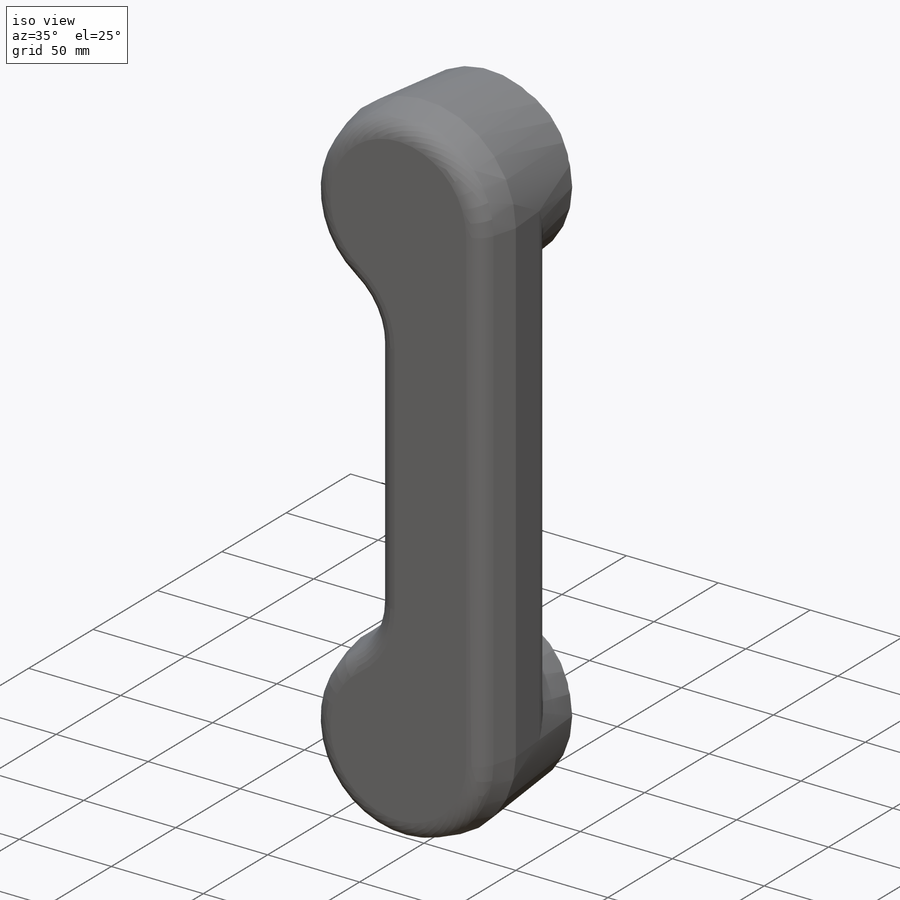
[diagram: iso view]
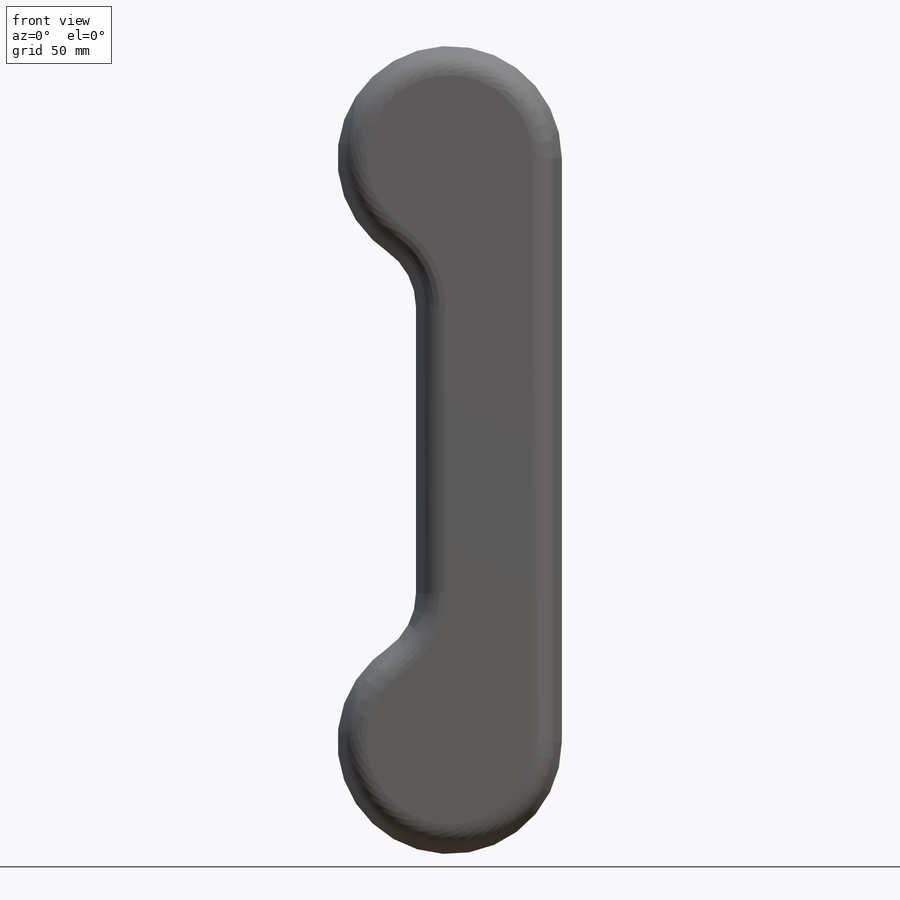
[diagram: front view]
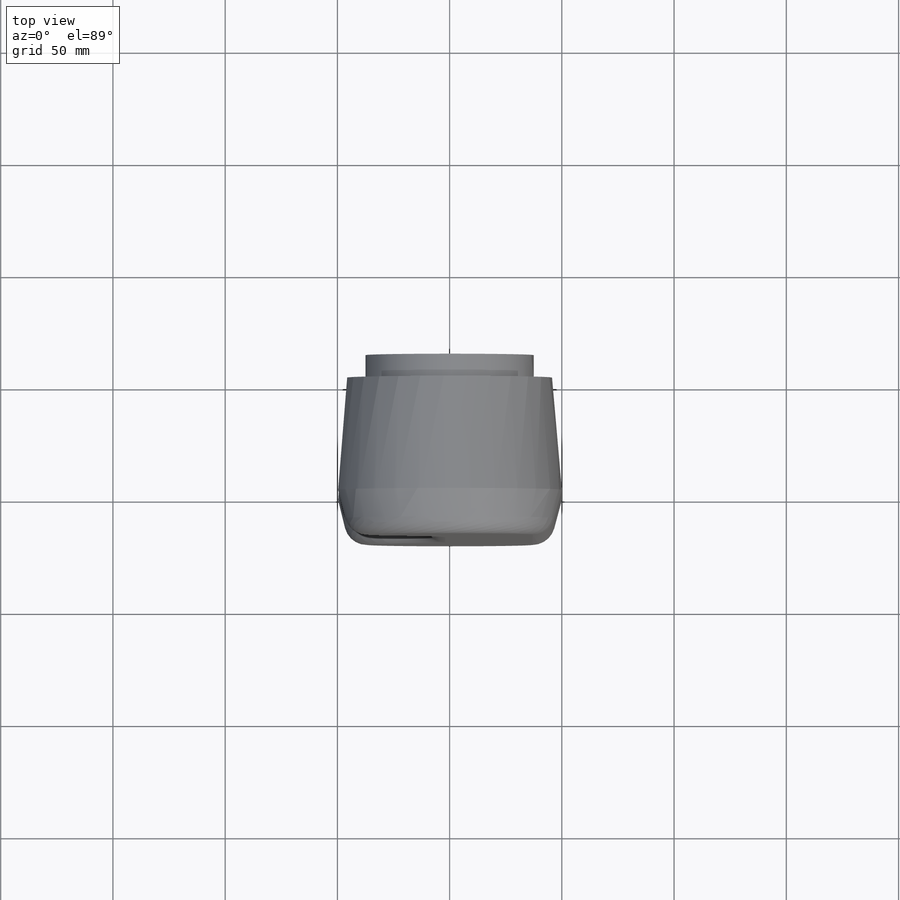
[diagram: top view]
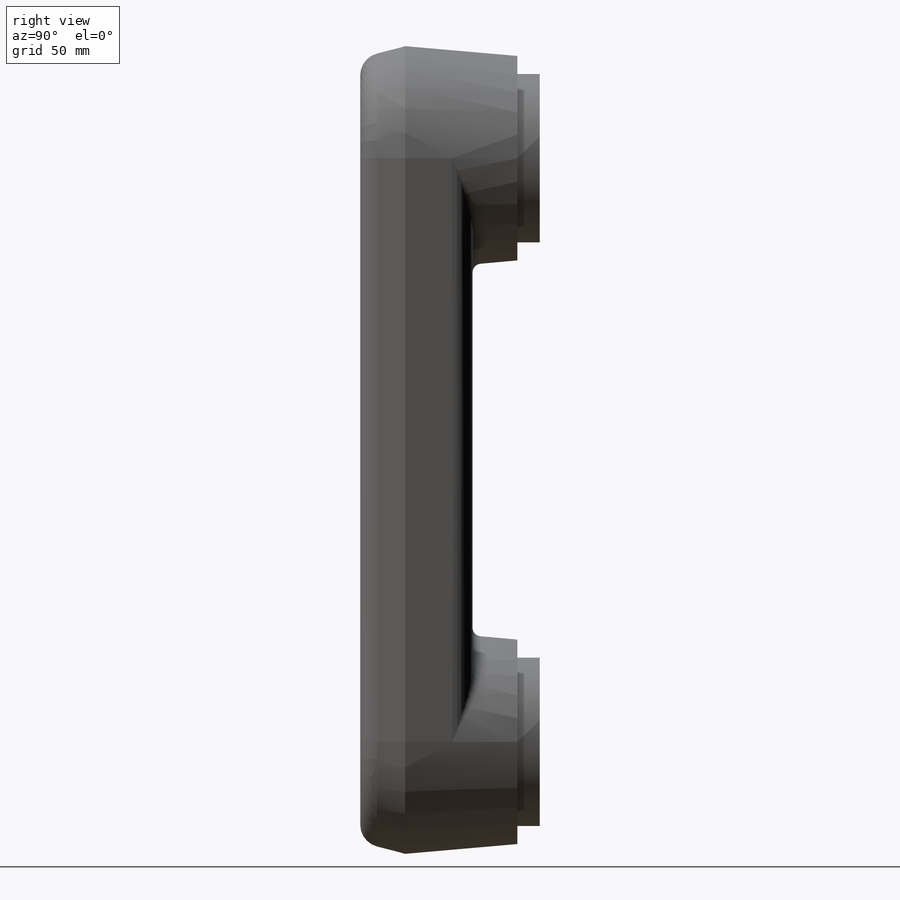
[diagram: right view]
SOLIDWORKS PART (.sldprt)
format: sldprt  version: not decoded by parser v0  size: 218,112 bytes
history: native  units: mm
features: sketch x3, extrude x3, fillet x2, material x1 (+12 scaffold rows collapsed; 1 parser-record rows omitted)
feature tree (22):
  scaffold x12  (default folders/planes/origin — collapsed)
  material  "Material <não especificado>"
  parser-record x1  (decoder bookkeeping rows leaked as tree rows — omitted from the tree; the rows remain in map.json)
  sketch  "Sketch1"  dims[c1.D2=50.0mm c1.D3=50.0mm c1.D6=30.0mm c1.D1=260.0mm c1.D4=~75.305624mm c1.D5=267.0mm c2.D5=45.0deg c2.D4=65.0mm]
  extrude  "Base-Extrude"  Depth=20mm
  sketch  "Sketch4"
  extrude  "Extrude1"  Depth=20mm
  fillet  "Fillet1"  Radius=10mm
  fillet  "Fillet2"  Radius=4mm
  sketch  "Sketch5"  dims[D1=75.0mm]
  extrude  "Extrude2"  Depth=10mm
decode coverage: 7 of 8 modeling features carry decoded parameters
note: ~ marks probable driven/reference dimensions
note: suppression state not decoded; provenance and decode notes live in map.json
